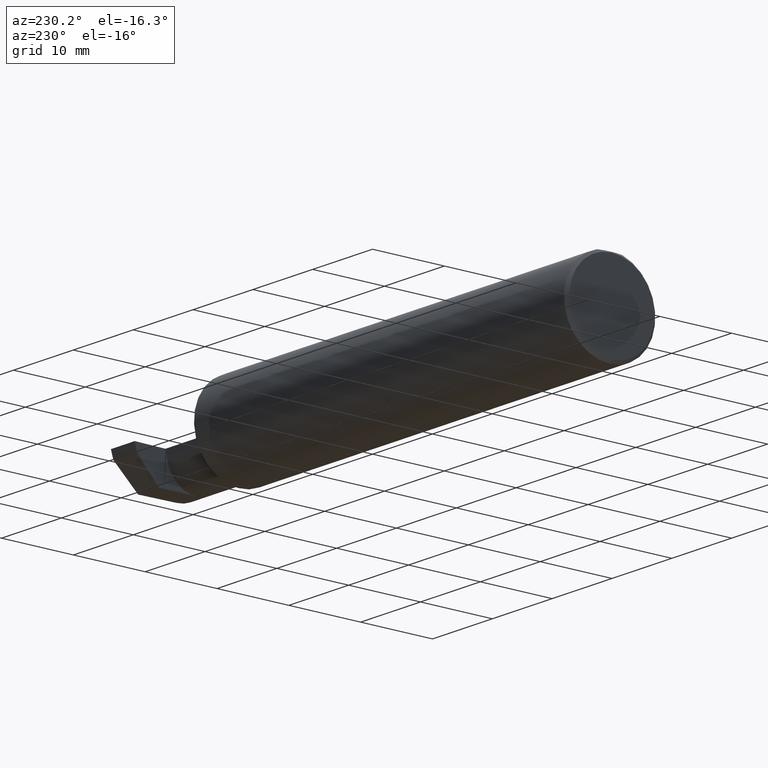
[diagram: clean part render]
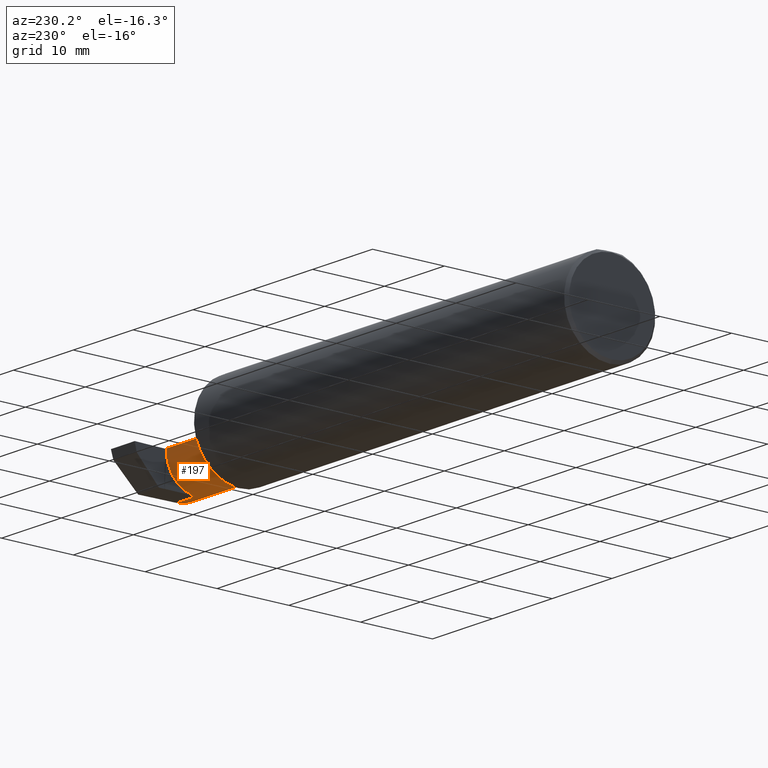
[diagram: same view with one face highlighted and labeled with its STEP entity id]
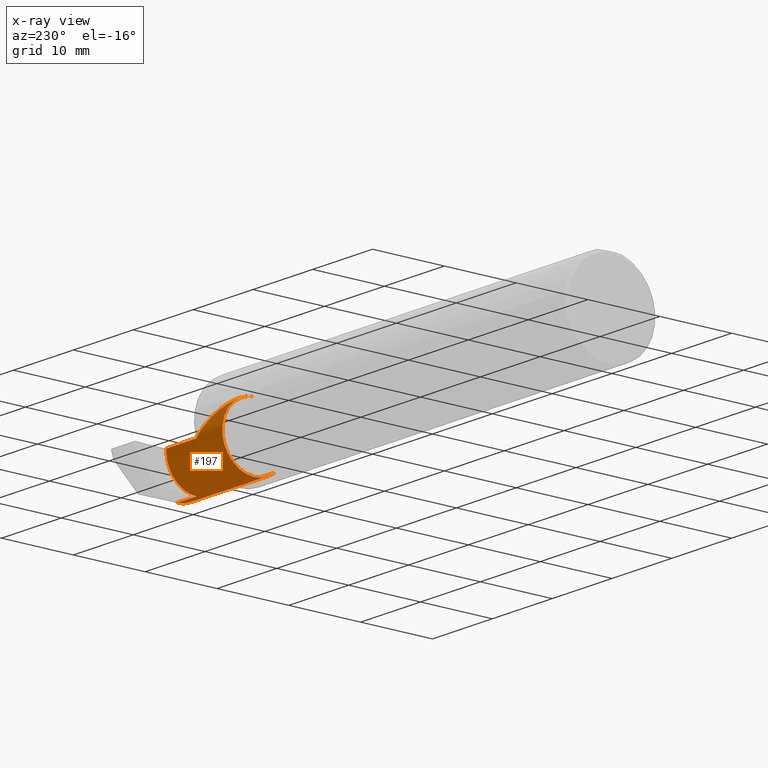
[diagram: x-ray of the same camera — body ghosted, the highlighted face saturated]
A machine part, auxiliary view. The second image highlights one B-rep face of the part: STEP entity #197.
The next image is the same camera in x-ray: the body ghosted, the highlighted face saturated — about 4% of this face is hidden behind the body in this view.
In plain terms, the highlighted cylindrical surface (partial cylindrical patch) has radius 4.445 mm, axis along (-1, -0, -0).
Its self-contained STEP definition (entity closure, byte-faithful):
#17 = CARTESIAN_POINT ( 'NONE',  ( 2.475000000000000977, -0.1008499999999999674, 0.1749999999999999889 ) ) ;
#37 = CARTESIAN_POINT ( 'NONE',  ( 2.843000000000000416, 0.07414999999999999369, 6.735556484410550145E-17 ) ) ;
#40 = CARTESIAN_POINT ( 'NONE',  ( 2.854036419112083944, -0.01887343476265484349, -0.1749999999999999889 ) ) ;
#50 = EDGE_CURVE ( 'NONE', #85, #362, #700, .T. ) ;
#57 = DIRECTION ( 'NONE',  ( -1.000000000000000000, -0.000000000000000000, -0.000000000000000000 ) ) ;
#60 = FACE_OUTER_BOUND ( 'NONE', #542, .T. ) ;
#62 = CARTESIAN_POINT ( 'NONE',  ( 2.475000000000000089, -0.1008499999999999674, 0.000000000000000000 ) ) ;
#71 = DIRECTION ( 'NONE',  ( 1.000000000000000000, 0.000000000000000000, 0.000000000000000000 ) ) ;
#80 = CARTESIAN_POINT ( 'NONE',  ( 2.980479240051444378, -0.2080850024789291652, -0.1382955322609665250 ) ) ;
#85 = VERTEX_POINT ( 'NONE', #485 ) ;
#94 = ORIENTED_EDGE ( 'NONE', *, *, #481, .F. ) ;
#115 = CARTESIAN_POINT ( 'NONE',  ( 2.475000000000000977, -0.1008499999999999674, 0.1749999999999999889 ) ) ;
#116 = VERTEX_POINT ( 'NONE', #311 ) ;
#120 = EDGE_CURVE ( 'NONE', #441, #116, #221, .T. ) ;
#123 = CARTESIAN_POINT ( 'NONE',  ( 2.843000000000000416, -0.1008499999999999674, 0.000000000000000000 ) ) ;
#124 = EDGE_CURVE ( 'NONE', #672, #352, #320, .T. ) ;
#127 = CARTESIAN_POINT ( 'NONE',  ( 2.650000000000000355, 0.07414999999999997982, 4.286263797015727350E-17 ) ) ;
#142 = LINE ( 'NONE', #656, #436 ) ;
#147 =( BOUNDED_CURVE ( )  B_SPLINE_CURVE ( 3, ( #683, #40, #804, #613 ),
 .UNSPECIFIED., .F., .T. ) 
 B_SPLINE_CURVE_WITH_KNOTS ( ( 4, 4 ),
 ( 3.140373936913444908, 4.443983221546779383 ),
 .UNSPECIFIED. ) 
 CURVE ( )  GEOMETRIC_REPRESENTATION_ITEM ( )  RATIONAL_B_SPLINE_CURVE ( ( 1.000000000000000000, 0.8633269052189369575, 0.8633269052189369575, 1.000000000000000000 ) ) 
 REPRESENTATION_ITEM ( '' )  );
#152 = CARTESIAN_POINT ( 'NONE',  ( 3.000000000000000444, -0.1008499999999999813, -0.1749999999999999889 ) ) ;
#156 = ORIENTED_EDGE ( 'NONE', *, *, #120, .T. ) ;
#163 = VERTEX_POINT ( 'NONE', #644 ) ;
#181 = AXIS2_PLACEMENT_3D ( 'NONE', #246, #57, #624 ) ;
#197 = ADVANCED_FACE ( 'NONE', ( #60 ), #327, .T. ) ;
#206 = VECTOR ( 'NONE', #71, 39.37007874015748143 ) ;
#221 = CIRCLE ( 'NONE', #406, 0.1749999999999999889 ) ;
#237 = DIRECTION ( 'NONE',  ( 0.000000000000000000, 0.000000000000000000, 1.000000000000000000 ) ) ;
#245 = CARTESIAN_POINT ( 'NONE',  ( 2.983262242683407006, -0.1008499999999999674, -0.1749999999999999889 ) ) ;
#246 = CARTESIAN_POINT ( 'NONE',  ( 2.475000000000000089, -0.1008499999999999674, 0.000000000000000000 ) ) ;
#262 = EDGE_CURVE ( 'NONE', #352, #441, #266, .T. ) ;
#266 = LINE ( 'NONE', #647, #206 ) ;
#278 = CARTESIAN_POINT ( 'NONE',  ( 2.981893741990786495, -0.1400387324517231025, -0.1750000000000000167 ) ) ;
#295 = ORIENTED_EDGE ( 'NONE', *, *, #262, .T. ) ;
#310 = CARTESIAN_POINT ( 'NONE',  ( 2.845037492458067696, 0.06794054266098431549, -0.04620338416404774079 ) ) ;
#311 = CARTESIAN_POINT ( 'NONE',  ( 2.843000000000000416, 0.07414987299205413884, -0.0002108382441793281274 ) ) ;
#320 =( BOUNDED_CURVE ( )  B_SPLINE_CURVE ( 3, ( #115, #815, #330, #127 ),
 .UNSPECIFIED., .F., .F. ) 
 B_SPLINE_CURVE_WITH_KNOTS ( ( 4, 4 ),
 ( 0.000000000000000000, 1.570796326794896558 ),
 .UNSPECIFIED. ) 
 CURVE ( )  GEOMETRIC_REPRESENTATION_ITEM ( )  RATIONAL_B_SPLINE_CURVE ( ( 1.000000000000000000, 0.8047378541243649375, 0.8047378541243649375, 1.000000000000000000 ) ) 
 REPRESENTATION_ITEM ( '' )  );
#326 = DIRECTION ( 'NONE',  ( -1.000000000000000000, -0.000000000000000000, -0.000000000000000000 ) ) ;
#327 = CYLINDRICAL_SURFACE ( 'NONE', #445, 0.1749999999999999889 ) ;
#330 = CARTESIAN_POINT ( 'NONE',  ( 2.547487373415292744, 0.07414999999999996594, 0.1025126265847083745 ) ) ;
#333 = AXIS2_PLACEMENT_3D ( 'NONE', #62, #326, #447 ) ;
#348 = DIRECTION ( 'NONE',  ( -1.000000000000000000, -0.000000000000000000, -0.000000000000000000 ) ) ;
#352 = VERTEX_POINT ( 'NONE', #666 ) ;
#362 = VERTEX_POINT ( 'NONE', #540 ) ;
#364 = CARTESIAN_POINT ( 'NONE',  ( 2.843689495973013681, 0.07413112468343002748, -0.01577237022675139974 ) ) ;
#368 = CARTESIAN_POINT ( 'NONE',  ( 2.843000000000000416, 0.07414987299205413884, -0.0002108382441793281274 ) ) ;
#372 = ORIENTED_EDGE ( 'NONE', *, *, #124, .T. ) ;
#375 = ORIENTED_EDGE ( 'NONE', *, *, #50, .F. ) ;
#397 = CARTESIAN_POINT ( 'NONE',  ( 2.980931506555613453, -0.1771157075472509779, -0.1623092683844330475 ) ) ;
#406 = AXIS2_PLACEMENT_3D ( 'NONE', #123, #560, #237 ) ;
#417 = DIRECTION ( 'NONE',  ( -1.000000000000000000, -0.000000000000000000, -0.000000000000000000 ) ) ;
#424 = EDGE_CURVE ( 'NONE', #811, #163, #147, .T. ) ;
#436 = VECTOR ( 'NONE', #417, 39.37007874015748143 ) ;
#441 = VERTEX_POINT ( 'NONE', #37 ) ;
#445 = AXIS2_PLACEMENT_3D ( 'NONE', #758, #706, #640 ) ;
#447 = DIRECTION ( 'NONE',  ( 0.000000000000000000, 0.000000000000000000, 1.000000000000000000 ) ) ;
#456 = LINE ( 'NONE', #152, #661 ) ;
#472 = ORIENTED_EDGE ( 'NONE', *, *, #717, .F. ) ;
#479 = CARTESIAN_POINT ( 'NONE',  ( 2.980479240051444378, -0.2080850024789291652, -0.1382955322609665250 ) ) ;
#481 = EDGE_CURVE ( 'NONE', #163, #116, #493, .T. ) ;
#485 = CARTESIAN_POINT ( 'NONE',  ( 2.475000000000000089, -0.1008499999999999536, -0.1749999999999999889 ) ) ;
#493 =( BOUNDED_CURVE ( )  B_SPLINE_CURVE ( 3, ( #310, #817, #364, #368 ),
 .UNSPECIFIED., .F., .T. ) 
 B_SPLINE_CURVE_WITH_KNOTS ( ( 4, 4 ),
 ( 4.443983221546780271, 4.709965478757016655 ),
 .UNSPECIFIED. ) 
 CURVE ( )  GEOMETRIC_REPRESENTATION_ITEM ( )  RATIONAL_B_SPLINE_CURVE ( ( 1.000000000000000000, 0.9941131374841131185, 0.9941131374841131185, 1.000000000000000000 ) ) 
 REPRESENTATION_ITEM ( '' )  );
#540 = CARTESIAN_POINT ( 'NONE',  ( 2.475000000000000089, -0.2080850024789291375, -0.1382955322609665805 ) ) ;
#542 = EDGE_LOOP ( 'NONE', ( #810, #807, #375, #685, #372, #295, #156, #94, #600, #472 ) ) ;
#560 = DIRECTION ( 'NONE',  ( -1.000000000000000000, -0.000000000000000000, -0.000000000000000000 ) ) ;
#564 = CARTESIAN_POINT ( 'NONE',  ( 2.854029432995153659, -0.1008500000000000091, -0.1749999999999999889 ) ) ;
#600 = ORIENTED_EDGE ( 'NONE', *, *, #424, .F. ) ;
#612 = EDGE_CURVE ( 'NONE', #672, #85, #649, .T. ) ;
#613 = CARTESIAN_POINT ( 'NONE',  ( 2.845037492458067696, 0.06794054266098431549, -0.04620338416404774079 ) ) ;
#619 =( BOUNDED_CURVE ( )  B_SPLINE_CURVE ( 3, ( #80, #397, #278, #669 ),
 .UNSPECIFIED., .F., .T. ) 
 B_SPLINE_CURVE_WITH_KNOTS ( ( 4, 4 ),
 ( 0.2675252011803428975, 0.9270880441442503894 ),
 .UNSPECIFIED. ) 
 CURVE ( )  GEOMETRIC_REPRESENTATION_ITEM ( )  RATIONAL_B_SPLINE_CURVE ( ( 1.000000000000000000, 0.9640754331822828371, 0.9640754331822828371, 1.000000000000000000 ) ) 
 REPRESENTATION_ITEM ( '' )  );
#624 = DIRECTION ( 'NONE',  ( 0.000000000000000000, 0.000000000000000000, 1.000000000000000000 ) ) ;
#640 = DIRECTION ( 'NONE',  ( 0.000000000000000000, 0.000000000000000000, 1.000000000000000000 ) ) ;
#644 = CARTESIAN_POINT ( 'NONE',  ( 2.845037492458067696, 0.06794054266098431549, -0.04620338416404774079 ) ) ;
#647 = CARTESIAN_POINT ( 'NONE',  ( 2.450000000000000178, 0.07414999999999997982, 6.735557395310432655E-17 ) ) ;
#649 = CIRCLE ( 'NONE', #333, 0.1749999999999999889 ) ;
#656 = CARTESIAN_POINT ( 'NONE',  ( 2.659000000000000252, -0.2080850024789291652, -0.1382955322609665250 ) ) ;
#661 = VECTOR ( 'NONE', #348, 39.37007874015748143 ) ;
#666 = CARTESIAN_POINT ( 'NONE',  ( 2.650000000000000355, 0.07414999999999997982, 4.286263797015727350E-17 ) ) ;
#667 = EDGE_CURVE ( 'NONE', #783, #362, #142, .T. ) ;
#669 = CARTESIAN_POINT ( 'NONE',  ( 2.983262242683407006, -0.1008499999999999674, -0.1749999999999999889 ) ) ;
#672 = VERTEX_POINT ( 'NONE', #17 ) ;
#683 = CARTESIAN_POINT ( 'NONE',  ( 2.854029432995153659, -0.1008500000000000091, -0.1749999999999999889 ) ) ;
#685 = ORIENTED_EDGE ( 'NONE', *, *, #612, .F. ) ;
#693 = EDGE_CURVE ( 'NONE', #783, #794, #619, .T. ) ;
#700 = CIRCLE ( 'NONE', #181, 0.1749999999999999889 ) ;
#706 = DIRECTION ( 'NONE',  ( -1.000000000000000000, -0.000000000000000000, -0.000000000000000000 ) ) ;
#717 = EDGE_CURVE ( 'NONE', #794, #811, #456, .T. ) ;
#758 = CARTESIAN_POINT ( 'NONE',  ( 2.450000000000000178, -0.1008499999999999674, 0.000000000000000000 ) ) ;
#783 = VERTEX_POINT ( 'NONE', #479 ) ;
#794 = VERTEX_POINT ( 'NONE', #245 ) ;
#804 = CARTESIAN_POINT ( 'NONE',  ( 2.850564601548836841, 0.04629714416892579537, -0.1252712066320192386 ) ) ;
#807 = ORIENTED_EDGE ( 'NONE', *, *, #667, .T. ) ;
#810 = ORIENTED_EDGE ( 'NONE', *, *, #693, .F. ) ;
#811 = VERTEX_POINT ( 'NONE', #564 ) ;
#815 = CARTESIAN_POINT ( 'NONE',  ( 2.475000000000001421, 0.001662626584708371512, 0.1749999999999999889 ) ) ;
#817 = CARTESIAN_POINT ( 'NONE',  ( 2.844372681961405913, 0.07204909126152571341, -0.03119400421533615256 ) ) ;